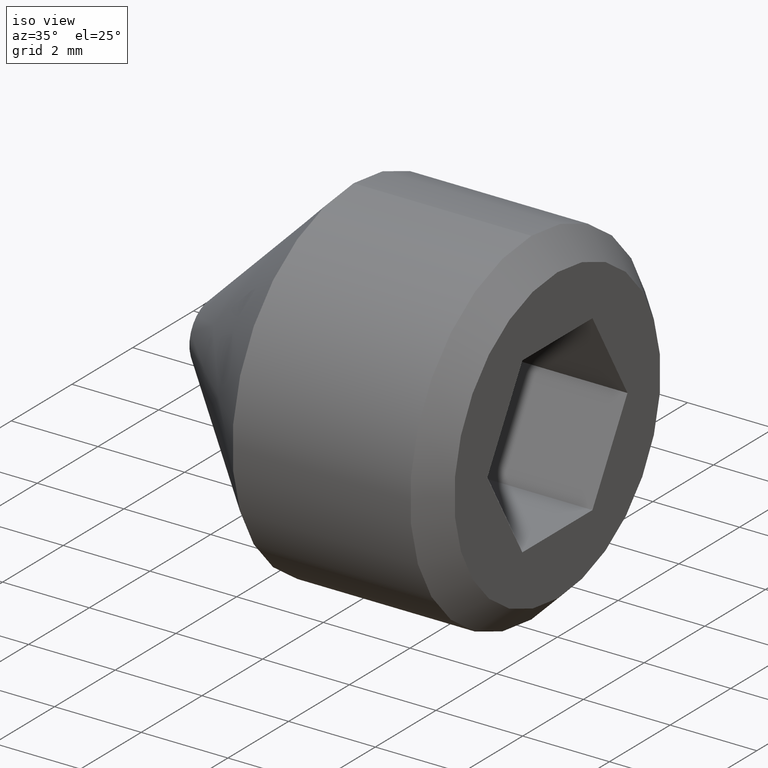
[diagram: clean part render]
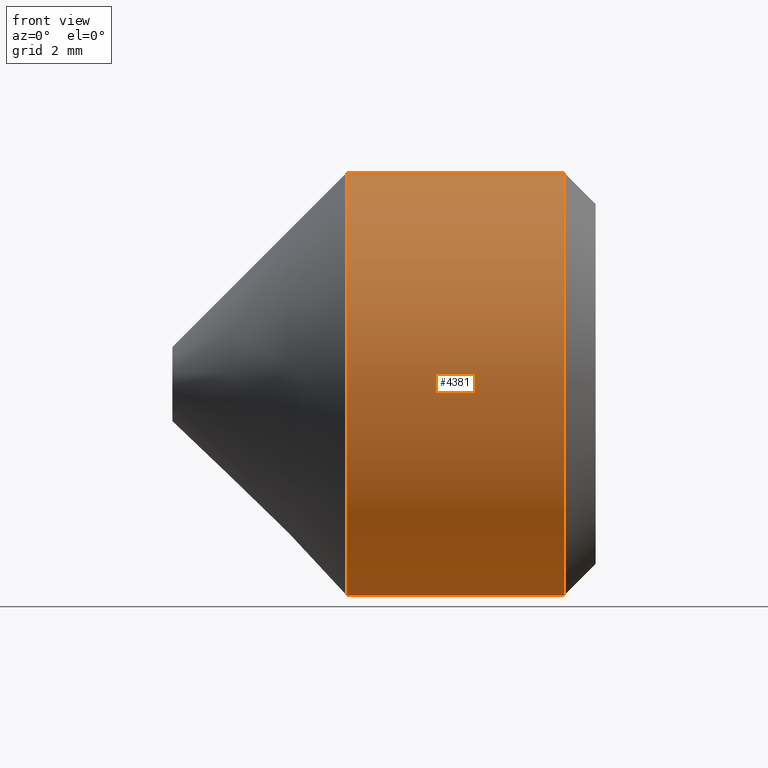
[diagram: tour spotlight — one face highlighted and labeled with its STEP entity id]
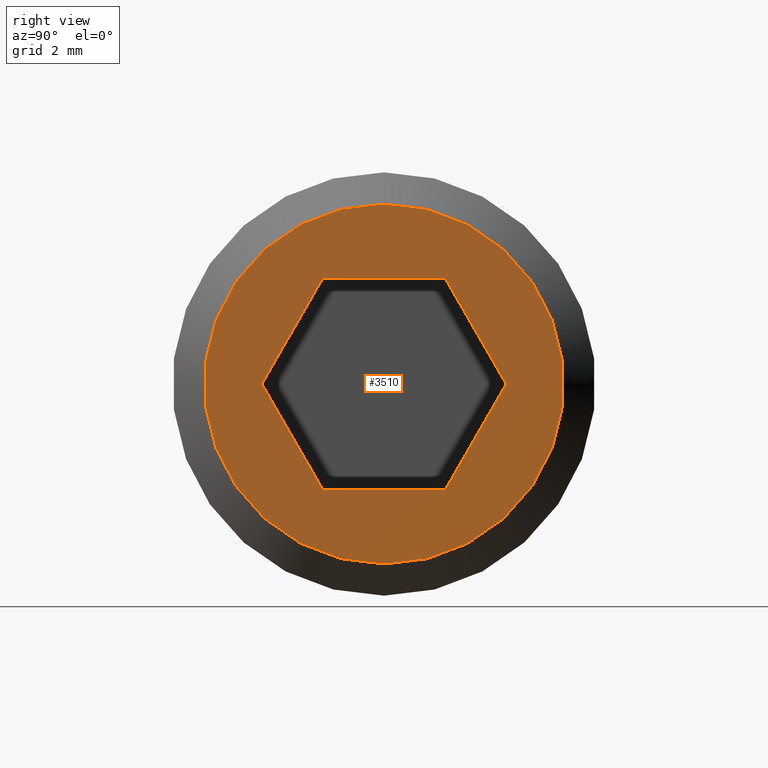
[diagram: tour spotlight — one face highlighted and labeled with its STEP entity id]
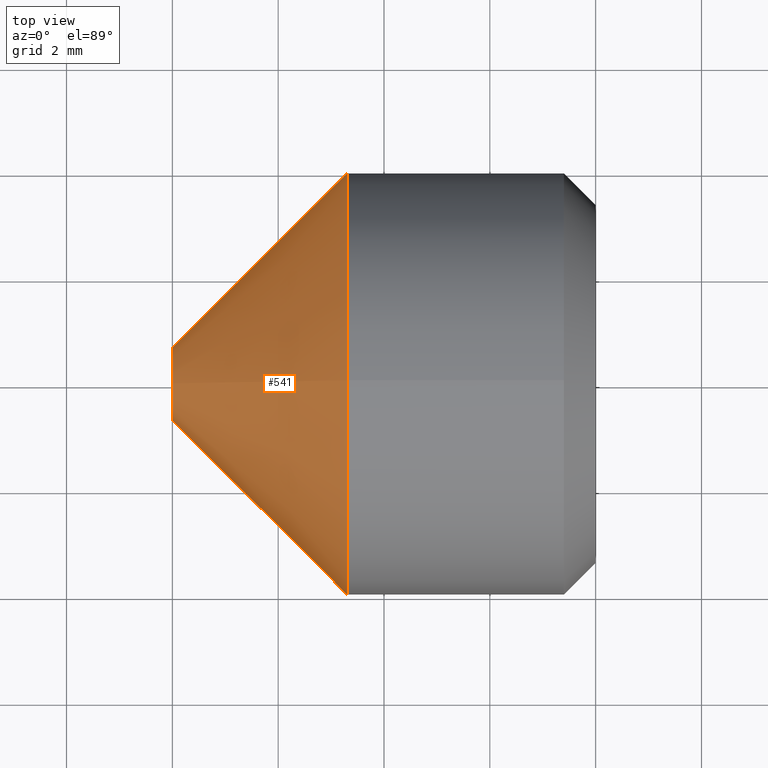
[diagram: tour spotlight — one face highlighted and labeled with its STEP entity id]
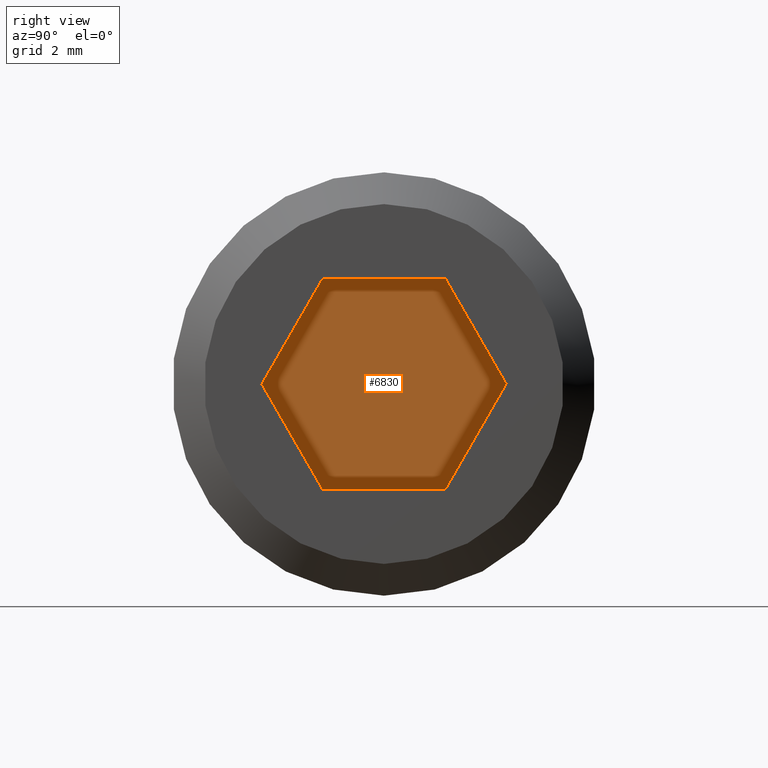
[diagram: tour spotlight — one face highlighted and labeled with its STEP entity id]
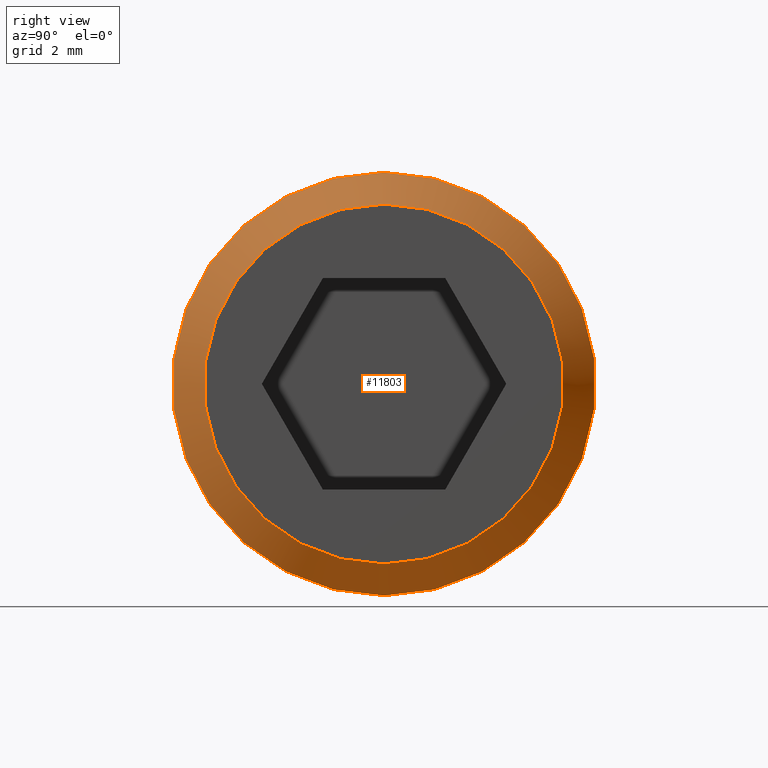
[diagram: tour spotlight — one face highlighted and labeled with its STEP entity id]
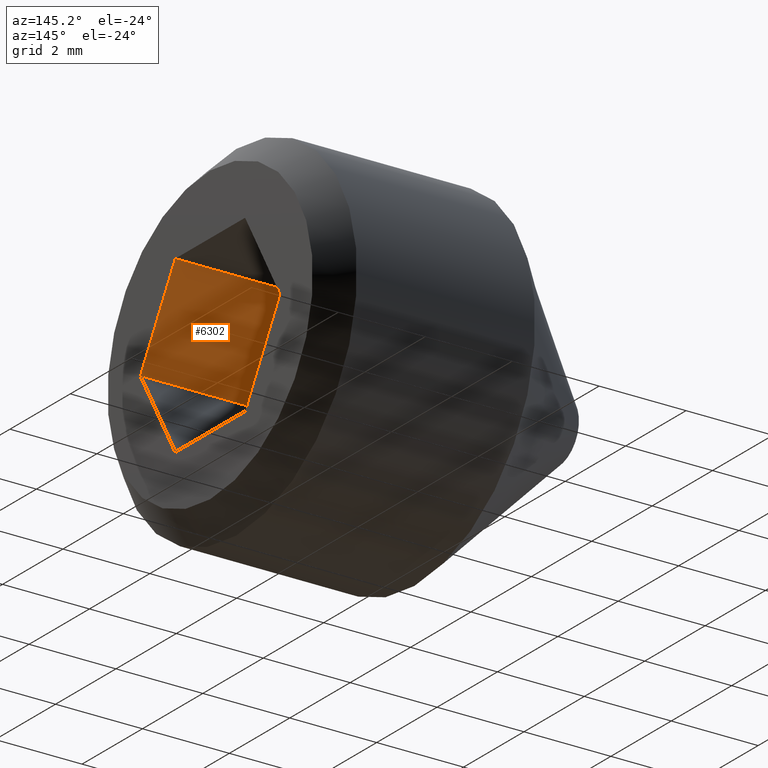
[diagram: tour spotlight — one face highlighted and labeled with its STEP entity id]
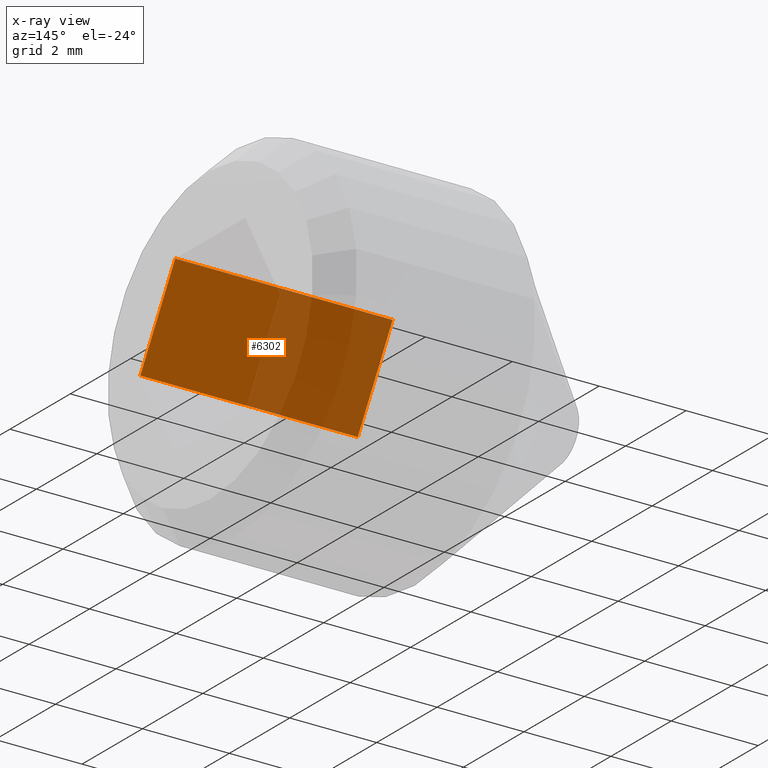
[diagram: x-ray of the same camera — body ghosted, this tour face saturated]
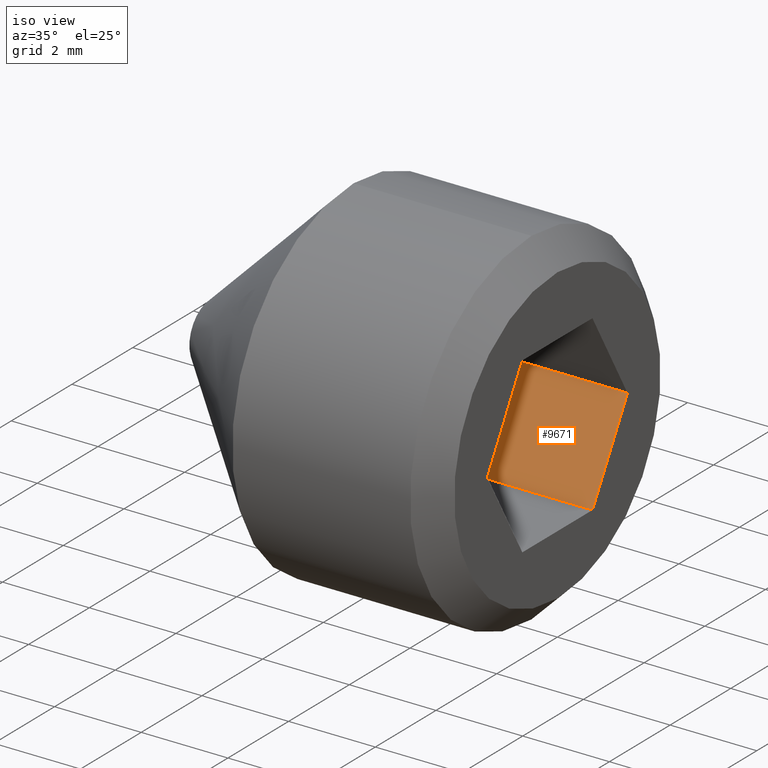
[diagram: tour spotlight — one face highlighted and labeled with its STEP entity id]
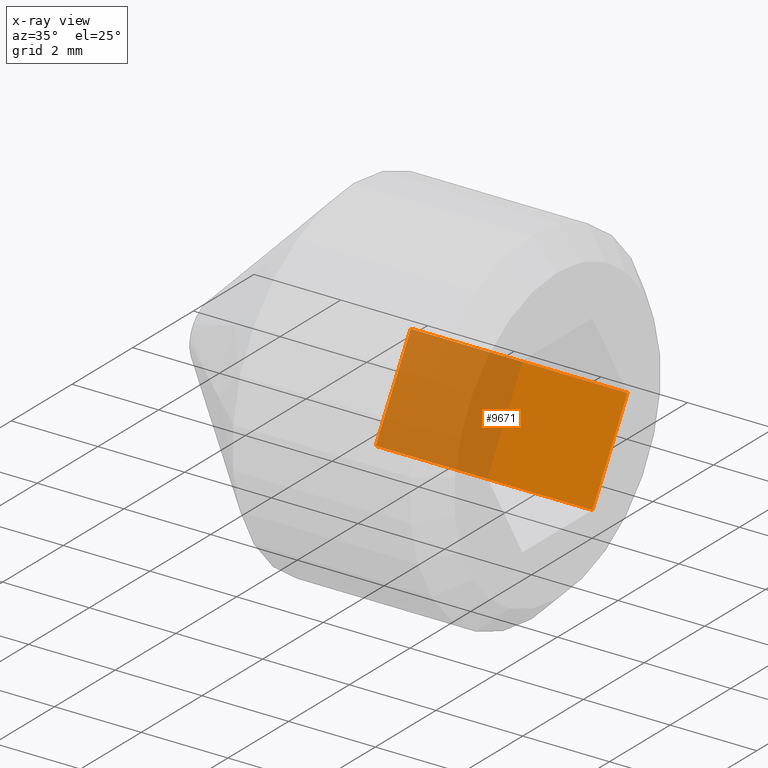
[diagram: x-ray of the same camera — body ghosted, this tour face saturated]
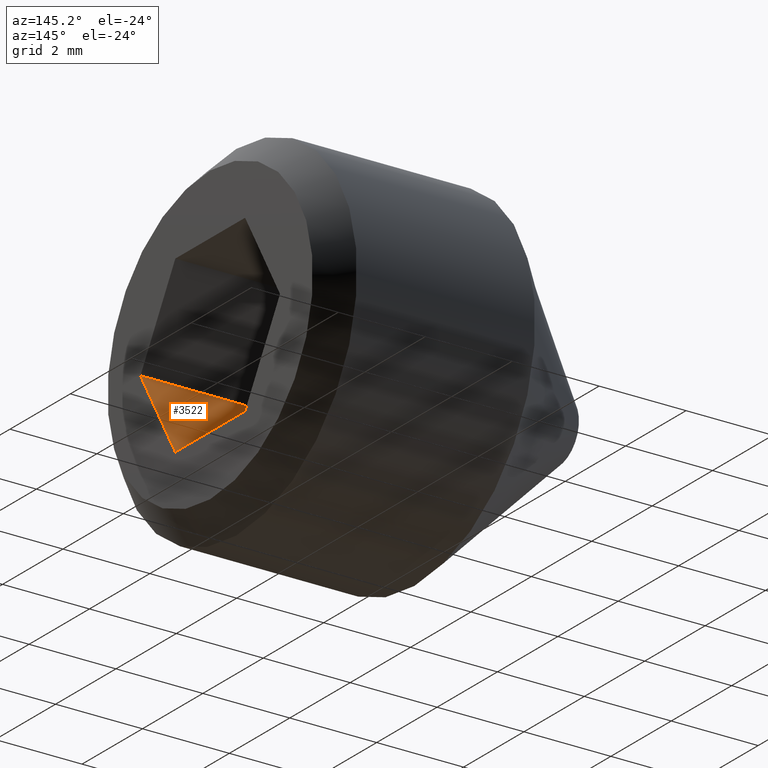
[diagram: tour spotlight — one face highlighted and labeled with its STEP entity id]
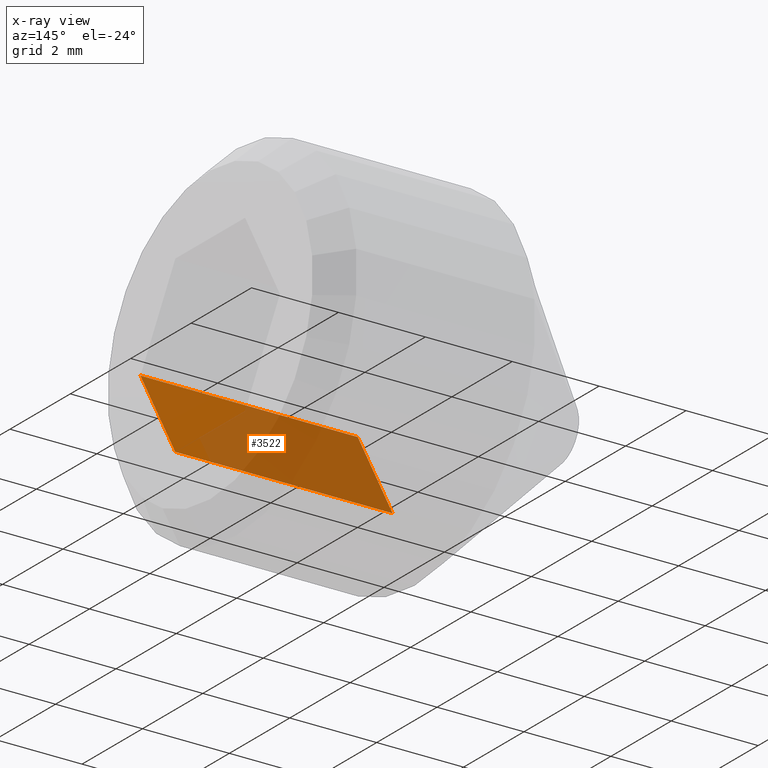
[diagram: x-ray of the same camera — body ghosted, this tour face saturated]
A machine part: a face-by-face anatomy tour. The part has 168 B-rep faces; the first image is the clean iso view, then the 8 largest visible faces are spotlighted one at a time (largest first), each with its STEP entity span.

Face 1 — front view, entity #4381. In plain terms, the highlighted cylindrical surface (bore or boss wall) has radius 4 mm, axis along (-1, -0, -0).
Definition (entity closure, byte-faithful):
#390 = VERTEX_POINT ( 'NONE', #3064 ) ;
#786 = CIRCLE ( 'NONE', #8305, 4.000000000000000000 ) ;
#1493 = DIRECTION ( 'NONE',  ( -1.000000000000000000, -0.0000000000000000000, -0.0000000000000000000 ) ) ;
#1528 = CARTESIAN_POINT ( 'NONE',  ( 3.299999999999964700, 0.0000000000000000000, 0.0000000000000000000 ) ) ;
#3064 = CARTESIAN_POINT ( 'NONE',  ( 3.299999999999964700, 0.0000000000000000000, 4.000000000000000000 ) ) ;
#4381 = ADVANCED_FACE ( 'NONE', ( #11003, #4550 ), #5138, .T. ) ;
#4550 = FACE_OUTER_BOUND ( 'NONE', #10054, .T. ) ;
#4663 = EDGE_CURVE ( 'NONE', #390, #390, #786, .T. ) ;
#5138 = CYLINDRICAL_SURFACE ( 'NONE', #9215, 4.000000000000000000 ) ;
#6056 = ORIENTED_EDGE ( 'NONE', *, *, #6669, .T. ) ;
#6124 = CARTESIAN_POINT ( 'NONE',  ( 8.000000000000000000, 0.0000000000000000000, 0.0000000000000000000 ) ) ;
#6669 = EDGE_CURVE ( 'NONE', #7599, #7599, #10388, .T. ) ;
#6915 = AXIS2_PLACEMENT_3D ( 'NONE', #11147, #9399, #8392 ) ;
#7024 = DIRECTION ( 'NONE',  ( -1.000000000000000000, -0.0000000000000000000, -0.0000000000000000000 ) ) ;
#7065 = DIRECTION ( 'NONE',  ( 0.0000000000000000000, 0.0000000000000000000, 1.000000000000000000 ) ) ;
#7494 = EDGE_LOOP ( 'NONE', ( #6056 ) ) ;
#7599 = VERTEX_POINT ( 'NONE', #7992 ) ;
#7992 = CARTESIAN_POINT ( 'NONE',  ( 7.399999999999998600, 0.0000000000000000000, -4.000000000000000000 ) ) ;
#8305 = AXIS2_PLACEMENT_3D ( 'NONE', #1528, #1493, #9620 ) ;
#8392 = DIRECTION ( 'NONE',  ( 0.0000000000000000000, 0.0000000000000000000, -1.000000000000000000 ) ) ;
#9215 = AXIS2_PLACEMENT_3D ( 'NONE', #6124, #7024, #7065 ) ;
#9399 = DIRECTION ( 'NONE',  ( -1.000000000000000000, 0.0000000000000000000, 0.0000000000000000000 ) ) ;
#9620 = DIRECTION ( 'NONE',  ( 0.0000000000000000000, 0.0000000000000000000, 1.000000000000000000 ) ) ;
#10054 = EDGE_LOOP ( 'NONE', ( #11303 ) ) ;
#10388 = CIRCLE ( 'NONE', #6915, 4.000000000000000000 ) ;
#11003 = FACE_OUTER_BOUND ( 'NONE', #7494, .T. ) ;
#11147 = CARTESIAN_POINT ( 'NONE',  ( 7.399999999999998600, 0.0000000000000000000, 0.0000000000000000000 ) ) ;
#11303 = ORIENTED_EDGE ( 'NONE', *, *, #4663, .F. ) ;

Face 2 — right view, entity #3510. In plain terms, the highlighted planar face has unit normal (1, 0, 0).
Definition (entity closure, byte-faithful):
#27 = DIRECTION ( 'NONE',  ( 1.000000000000000000, 0.0000000000000000000, 0.0000000000000000000 ) ) ;
#343 = VERTEX_POINT ( 'NONE', #1498 ) ;
#411 = EDGE_CURVE ( 'NONE', #6278, #343, #10595, .T. ) ;
#626 = EDGE_CURVE ( 'NONE', #2714, #6278, #8764, .T. ) ;
#948 = CARTESIAN_POINT ( 'NONE',  ( 8.000000000000000000, 0.0000000000000000000, 0.0000000000000000000 ) ) ;
#950 = LINE ( 'NONE', #1221, #10441 ) ;
#1024 = VECTOR ( 'NONE', #9881, 1000.000000000000000 ) ;
#1061 = DIRECTION ( 'NONE',  ( 1.000000000000000000, 0.0000000000000000000, 0.0000000000000000000 ) ) ;
#1197 = AXIS2_PLACEMENT_3D ( 'NONE', #948, #27, #9168 ) ;
#1221 = CARTESIAN_POINT ( 'NONE',  ( 8.000000000000000000, 2.309401076758503400, -8.844675031407550400E-016 ) ) ;
#1498 = CARTESIAN_POINT ( 'NONE',  ( 8.000000000000000000, -2.309401076758502900, 2.168404344971008900E-016 ) ) ;
#1565 = VERTEX_POINT ( 'NONE', #5820 ) ;
#1920 = PLANE ( 'NONE',  #1197 ) ;
#1946 = CARTESIAN_POINT ( 'NONE',  ( 8.000000000000000000, 0.0000000000000000000, 0.0000000000000000000 ) ) ;
#2029 = CARTESIAN_POINT ( 'NONE',  ( 8.000000000000000000, 2.309401076758503400, -8.844675031407550400E-016 ) ) ;
#2254 = LINE ( 'NONE', #5910, #3553 ) ;
#2714 = VERTEX_POINT ( 'NONE', #8653 ) ;
#3028 = EDGE_CURVE ( 'NONE', #3137, #2714, #950, .T. ) ;
#3114 = CARTESIAN_POINT ( 'NONE',  ( 8.000000000000000000, 1.154700538379252400, -1.999999999999999600 ) ) ;
#3137 = VERTEX_POINT ( 'NONE', #2029 ) ;
#3202 = EDGE_CURVE ( 'NONE', #9462, #4378, #2254, .T. ) ;
#3441 = CARTESIAN_POINT ( 'NONE',  ( 8.000000000000000000, 1.154700538379252400, -1.999999999999999600 ) ) ;
#3486 = CARTESIAN_POINT ( 'NONE',  ( 8.000000000000000000, -1.154700538379251000, 2.000000000000000000 ) ) ;
#3492 = CIRCLE ( 'NONE', #10682, 3.400000000000000800 ) ;
#3510 = ADVANCED_FACE ( 'NONE', ( #11152, #3832 ), #1920, .T. ) ;
#3539 = EDGE_LOOP ( 'NONE', ( #4271 ) ) ;
#3553 = VECTOR ( 'NONE', #11502, 1000.000000000000000 ) ;
#3832 = FACE_OUTER_BOUND ( 'NONE', #3539, .T. ) ;
#4271 = ORIENTED_EDGE ( 'NONE', *, *, #8245, .T. ) ;
#4378 = VERTEX_POINT ( 'NONE', #3441 ) ;
#4903 = DIRECTION ( 'NONE',  ( 0.0000000000000000000, 0.4999999999999999400, 0.8660254037844386000 ) ) ;
#5820 = CARTESIAN_POINT ( 'NONE',  ( 8.000000000000000000, 0.0000000000000000000, -3.400000000000000800 ) ) ;
#5910 = CARTESIAN_POINT ( 'NONE',  ( 8.000000000000000000, -1.154700538379252400, -1.999999999999999600 ) ) ;
#6002 = CARTESIAN_POINT ( 'NONE',  ( 8.000000000000000000, -2.309401076758502500, 4.317532481129756600E-016 ) ) ;
#6278 = VERTEX_POINT ( 'NONE', #3486 ) ;
#6321 = VECTOR ( 'NONE', #6759, 1000.000000000000000 ) ;
#6344 = CARTESIAN_POINT ( 'NONE',  ( 8.000000000000000000, -1.154700538379252400, -1.999999999999999600 ) ) ;
#6605 = VECTOR ( 'NONE', #11417, 1000.000000000000100 ) ;
#6633 = ORIENTED_EDGE ( 'NONE', *, *, #8403, .F. ) ;
#6659 = DIRECTION ( 'NONE',  ( 0.0000000000000000000, 0.0000000000000000000, -1.000000000000000000 ) ) ;
#6759 = DIRECTION ( 'NONE',  ( 0.0000000000000000000, -1.000000000000000000, 0.0000000000000000000 ) ) ;
#6932 = CARTESIAN_POINT ( 'NONE',  ( 8.000000000000000000, -1.154700538379251000, 2.000000000000000000 ) ) ;
#7305 = ORIENTED_EDGE ( 'NONE', *, *, #3028, .F. ) ;
#8136 = EDGE_CURVE ( 'NONE', #343, #9462, #9956, .T. ) ;
#8137 = ORIENTED_EDGE ( 'NONE', *, *, #8136, .F. ) ;
#8245 = EDGE_CURVE ( 'NONE', #1565, #1565, #3492, .T. ) ;
#8403 = EDGE_CURVE ( 'NONE', #4378, #3137, #10226, .T. ) ;
#8546 = DIRECTION ( 'NONE',  ( 0.0000000000000000000, -0.4999999999999997200, 0.8660254037844388200 ) ) ;
#8653 = CARTESIAN_POINT ( 'NONE',  ( 8.000000000000000000, 1.154700538379252100, 2.000000000000000000 ) ) ;
#8764 = LINE ( 'NONE', #11400, #6321 ) ;
#8973 = ORIENTED_EDGE ( 'NONE', *, *, #3202, .F. ) ;
#9168 = DIRECTION ( 'NONE',  ( 0.0000000000000000000, 0.0000000000000000000, -1.000000000000000000 ) ) ;
#9462 = VERTEX_POINT ( 'NONE', #6344 ) ;
#9765 = EDGE_LOOP ( 'NONE', ( #11397, #11482, #7305, #6633, #8973, #8137 ) ) ;
#9881 = DIRECTION ( 'NONE',  ( 0.0000000000000000000, 0.4999999999999995600, -0.8660254037844389300 ) ) ;
#9956 = LINE ( 'NONE', #6002, #1024 ) ;
#10226 = LINE ( 'NONE', #3114, #10368 ) ;
#10368 = VECTOR ( 'NONE', #4903, 1000.000000000000100 ) ;
#10441 = VECTOR ( 'NONE', #8546, 1000.000000000000000 ) ;
#10595 = LINE ( 'NONE', #6932, #6605 ) ;
#10682 = AXIS2_PLACEMENT_3D ( 'NONE', #1946, #1061, #6659 ) ;
#11152 = FACE_BOUND ( 'NONE', #9765, .T. ) ;
#11397 = ORIENTED_EDGE ( 'NONE', *, *, #411, .F. ) ;
#11400 = CARTESIAN_POINT ( 'NONE',  ( 8.000000000000000000, 1.154700538379252100, 2.000000000000000000 ) ) ;
#11417 = DIRECTION ( 'NONE',  ( 0.0000000000000000000, -0.4999999999999999400, -0.8660254037844386000 ) ) ;
#11482 = ORIENTED_EDGE ( 'NONE', *, *, #626, .F. ) ;
#11502 = DIRECTION ( 'NONE',  ( 0.0000000000000000000, 1.000000000000000000, 0.0000000000000000000 ) ) ;

Face 3 — top view, entity #541. In plain terms, the highlighted conical surface has half-angle 45 deg.
Definition (entity closure, byte-faithful):
#199 = ORIENTED_EDGE ( 'NONE', *, *, #4663, .T. ) ;
#390 = VERTEX_POINT ( 'NONE', #3064 ) ;
#541 = ADVANCED_FACE ( 'NONE', ( #11178, #3842 ), #5173, .T. ) ;
#637 = DIRECTION ( 'NONE',  ( 0.0000000000000000000, 0.0000000000000000000, -1.000000000000000000 ) ) ;
#786 = CIRCLE ( 'NONE', #8305, 4.000000000000000000 ) ;
#1493 = DIRECTION ( 'NONE',  ( -1.000000000000000000, -0.0000000000000000000, -0.0000000000000000000 ) ) ;
#1528 = CARTESIAN_POINT ( 'NONE',  ( 3.299999999999964700, 0.0000000000000000000, 0.0000000000000000000 ) ) ;
#1709 = VERTEX_POINT ( 'NONE', #4769 ) ;
#2110 = AXIS2_PLACEMENT_3D ( 'NONE', #8906, #4324, #637 ) ;
#3064 = CARTESIAN_POINT ( 'NONE',  ( 3.299999999999964700, 0.0000000000000000000, 4.000000000000000000 ) ) ;
#3363 = EDGE_LOOP ( 'NONE', ( #7447 ) ) ;
#3842 = FACE_BOUND ( 'NONE', #3363, .T. ) ;
#4151 = AXIS2_PLACEMENT_3D ( 'NONE', #10236, #4754, #5674 ) ;
#4324 = DIRECTION ( 'NONE',  ( 1.000000000000000000, 0.0000000000000000000, 0.0000000000000000000 ) ) ;
#4634 = EDGE_LOOP ( 'NONE', ( #199 ) ) ;
#4663 = EDGE_CURVE ( 'NONE', #390, #390, #786, .T. ) ;
#4754 = DIRECTION ( 'NONE',  ( -1.000000000000000000, -0.0000000000000000000, -0.0000000000000000000 ) ) ;
#4769 = CARTESIAN_POINT ( 'NONE',  ( 2.816687638038912500E-016, 0.0000000000000000000, 0.6999999999999999600 ) ) ;
#5173 = CONICAL_SURFACE ( 'NONE', #2110, 0.6999999999999999600, 0.7853981633974537200 ) ;
#5674 = DIRECTION ( 'NONE',  ( 0.0000000000000000000, 0.0000000000000000000, 1.000000000000000000 ) ) ;
#7447 = ORIENTED_EDGE ( 'NONE', *, *, #7740, .F. ) ;
#7740 = EDGE_CURVE ( 'NONE', #1709, #1709, #11940, .T. ) ;
#8305 = AXIS2_PLACEMENT_3D ( 'NONE', #1528, #1493, #9620 ) ;
#8906 = CARTESIAN_POINT ( 'NONE',  ( 2.816687638038912500E-016, 0.0000000000000000000, 0.0000000000000000000 ) ) ;
#9620 = DIRECTION ( 'NONE',  ( 0.0000000000000000000, 0.0000000000000000000, 1.000000000000000000 ) ) ;
#10236 = CARTESIAN_POINT ( 'NONE',  ( 2.816687638038912500E-016, 0.0000000000000000000, 0.0000000000000000000 ) ) ;
#11178 = FACE_OUTER_BOUND ( 'NONE', #4634, .T. ) ;
#11940 = CIRCLE ( 'NONE', #4151, 0.6999999999999999600 ) ;

Face 4 — right view, entity #6830. In plain terms, the highlighted planar face has unit normal (1, -0, 0).
Definition (entity closure, byte-faithful):
#424 = AXIS2_PLACEMENT_3D ( 'NONE', #6006, #9524, #4183 ) ;
#905 = ORIENTED_EDGE ( 'NONE', *, *, #10077, .T. ) ;
#1026 = ORIENTED_EDGE ( 'NONE', *, *, #2127, .T. ) ;
#1112 = LINE ( 'NONE', #7475, #2111 ) ;
#1336 = VECTOR ( 'NONE', #4856, 1000.000000000000100 ) ;
#1814 = VERTEX_POINT ( 'NONE', #2299 ) ;
#1966 = EDGE_CURVE ( 'NONE', #5034, #4649, #4302, .T. ) ;
#2111 = VECTOR ( 'NONE', #7509, 1000.000000000000100 ) ;
#2127 = EDGE_CURVE ( 'NONE', #1814, #5034, #1112, .T. ) ;
#2299 = CARTESIAN_POINT ( 'NONE',  ( 3.000000000000000000, -1.154700538379251000, 1.999999999999999600 ) ) ;
#2416 = EDGE_LOOP ( 'NONE', ( #1026, #7368, #5772, #9176, #905, #8730 ) ) ;
#3193 = CARTESIAN_POINT ( 'NONE',  ( 3.000000000000000000, 2.309401076758503400, -1.190619091596349400E-015 ) ) ;
#3358 = CARTESIAN_POINT ( 'NONE',  ( 3.000000000000000000, 1.154700538379252100, 1.999999999999999600 ) ) ;
#3407 = EDGE_CURVE ( 'NONE', #9070, #1814, #8165, .T. ) ;
#3988 = CARTESIAN_POINT ( 'NONE',  ( 3.000000000000000000, -1.154700538379252400, -2.000000000000000000 ) ) ;
#4143 = VECTOR ( 'NONE', #7248, 1000.000000000000000 ) ;
#4183 = DIRECTION ( 'NONE',  ( 0.0000000000000000000, 0.0000000000000000000, -1.000000000000000000 ) ) ;
#4302 = LINE ( 'NONE', #7209, #4143 ) ;
#4360 = DIRECTION ( 'NONE',  ( 0.0000000000000000000, -1.000000000000000000, 0.0000000000000000000 ) ) ;
#4649 = VERTEX_POINT ( 'NONE', #3988 ) ;
#4821 = CARTESIAN_POINT ( 'NONE',  ( 3.000000000000000000, 2.309401076758503400, -1.190619091596349400E-015 ) ) ;
#4856 = DIRECTION ( 'NONE',  ( 0.0000000000000000000, 0.4999999999999999400, 0.8660254037844386000 ) ) ;
#5034 = VERTEX_POINT ( 'NONE', #5447 ) ;
#5041 = CARTESIAN_POINT ( 'NONE',  ( 3.000000000000000000, -1.154700538379252400, -2.000000000000000000 ) ) ;
#5341 = LINE ( 'NONE', #4821, #10067 ) ;
#5447 = CARTESIAN_POINT ( 'NONE',  ( 3.000000000000000000, -2.309401076758502500, 1.256016596573813500E-016 ) ) ;
#5772 = ORIENTED_EDGE ( 'NONE', *, *, #6879, .T. ) ;
#5873 = EDGE_CURVE ( 'NONE', #11632, #7323, #9834, .T. ) ;
#6006 = CARTESIAN_POINT ( 'NONE',  ( 3.000000000000000000, -3.464101615137753900, -2.000000000000000000 ) ) ;
#6382 = CARTESIAN_POINT ( 'NONE',  ( 3.000000000000000000, 1.154700538379252400, -2.000000000000000000 ) ) ;
#6830 = ADVANCED_FACE ( 'NONE', ( #8520 ), #10549, .T. ) ;
#6879 = EDGE_CURVE ( 'NONE', #4649, #11632, #8249, .T. ) ;
#7209 = CARTESIAN_POINT ( 'NONE',  ( 3.000000000000000000, -2.309401076758502500, 1.256016596573813500E-016 ) ) ;
#7248 = DIRECTION ( 'NONE',  ( 0.0000000000000000000, 0.4999999999999995600, -0.8660254037844389300 ) ) ;
#7323 = VERTEX_POINT ( 'NONE', #3193 ) ;
#7368 = ORIENTED_EDGE ( 'NONE', *, *, #1966, .T. ) ;
#7475 = CARTESIAN_POINT ( 'NONE',  ( 3.000000000000000000, -1.154700538379251000, 1.999999999999999600 ) ) ;
#7509 = DIRECTION ( 'NONE',  ( 0.0000000000000000000, -0.4999999999999999400, -0.8660254037844386000 ) ) ;
#8095 = CARTESIAN_POINT ( 'NONE',  ( 3.000000000000000000, 1.154700538379252100, 1.999999999999999600 ) ) ;
#8165 = LINE ( 'NONE', #8095, #8881 ) ;
#8249 = LINE ( 'NONE', #5041, #10098 ) ;
#8520 = FACE_OUTER_BOUND ( 'NONE', #2416, .T. ) ;
#8730 = ORIENTED_EDGE ( 'NONE', *, *, #3407, .T. ) ;
#8881 = VECTOR ( 'NONE', #4360, 1000.000000000000000 ) ;
#9070 = VERTEX_POINT ( 'NONE', #3358 ) ;
#9176 = ORIENTED_EDGE ( 'NONE', *, *, #5873, .T. ) ;
#9524 = DIRECTION ( 'NONE',  ( 1.000000000000000000, -0.0000000000000000000, 0.0000000000000000000 ) ) ;
#9834 = LINE ( 'NONE', #10337, #1336 ) ;
#10067 = VECTOR ( 'NONE', #11184, 1000.000000000000000 ) ;
#10077 = EDGE_CURVE ( 'NONE', #7323, #9070, #5341, .T. ) ;
#10098 = VECTOR ( 'NONE', #10589, 1000.000000000000000 ) ;
#10337 = CARTESIAN_POINT ( 'NONE',  ( 3.000000000000000000, 1.154700538379252400, -2.000000000000000000 ) ) ;
#10549 = PLANE ( 'NONE',  #424 ) ;
#10589 = DIRECTION ( 'NONE',  ( 0.0000000000000000000, 1.000000000000000000, 0.0000000000000000000 ) ) ;
#11184 = DIRECTION ( 'NONE',  ( 0.0000000000000000000, -0.4999999999999997200, 0.8660254037844388200 ) ) ;
#11632 = VERTEX_POINT ( 'NONE', #6382 ) ;

Face 5 — right view, entity #11803. In plain terms, the highlighted conical surface has half-angle 45 deg.
Definition (entity closure, byte-faithful):
#1061 = DIRECTION ( 'NONE',  ( 1.000000000000000000, 0.0000000000000000000, 0.0000000000000000000 ) ) ;
#1565 = VERTEX_POINT ( 'NONE', #5820 ) ;
#1946 = CARTESIAN_POINT ( 'NONE',  ( 8.000000000000000000, 0.0000000000000000000, 0.0000000000000000000 ) ) ;
#2116 = ORIENTED_EDGE ( 'NONE', *, *, #8245, .F. ) ;
#2195 = DIRECTION ( 'NONE',  ( 0.0000000000000000000, 0.0000000000000000000, 1.000000000000000000 ) ) ;
#3492 = CIRCLE ( 'NONE', #10682, 3.400000000000000800 ) ;
#3726 = FACE_OUTER_BOUND ( 'NONE', #9941, .T. ) ;
#5337 = ORIENTED_EDGE ( 'NONE', *, *, #6669, .F. ) ;
#5671 = EDGE_LOOP ( 'NONE', ( #2116 ) ) ;
#5820 = CARTESIAN_POINT ( 'NONE',  ( 8.000000000000000000, 0.0000000000000000000, -3.400000000000000800 ) ) ;
#6659 = DIRECTION ( 'NONE',  ( 0.0000000000000000000, 0.0000000000000000000, -1.000000000000000000 ) ) ;
#6669 = EDGE_CURVE ( 'NONE', #7599, #7599, #10388, .T. ) ;
#6915 = AXIS2_PLACEMENT_3D ( 'NONE', #11147, #9399, #8392 ) ;
#7599 = VERTEX_POINT ( 'NONE', #7992 ) ;
#7873 = DIRECTION ( 'NONE',  ( -1.000000000000000000, 0.0000000000000000000, 0.0000000000000000000 ) ) ;
#7992 = CARTESIAN_POINT ( 'NONE',  ( 7.399999999999998600, 0.0000000000000000000, -4.000000000000000000 ) ) ;
#8172 = AXIS2_PLACEMENT_3D ( 'NONE', #8759, #7873, #2195 ) ;
#8245 = EDGE_CURVE ( 'NONE', #1565, #1565, #3492, .T. ) ;
#8392 = DIRECTION ( 'NONE',  ( 0.0000000000000000000, 0.0000000000000000000, -1.000000000000000000 ) ) ;
#8759 = CARTESIAN_POINT ( 'NONE',  ( 8.000000000000000000, 0.0000000000000000000, 0.0000000000000000000 ) ) ;
#9399 = DIRECTION ( 'NONE',  ( -1.000000000000000000, 0.0000000000000000000, 0.0000000000000000000 ) ) ;
#9941 = EDGE_LOOP ( 'NONE', ( #5337 ) ) ;
#10388 = CIRCLE ( 'NONE', #6915, 4.000000000000000000 ) ;
#10613 = CONICAL_SURFACE ( 'NONE', #8172, 3.400000000000000800, 0.7853981633974465000 ) ;
#10682 = AXIS2_PLACEMENT_3D ( 'NONE', #1946, #1061, #6659 ) ;
#11147 = CARTESIAN_POINT ( 'NONE',  ( 7.399999999999998600, 0.0000000000000000000, 0.0000000000000000000 ) ) ;
#11183 = FACE_BOUND ( 'NONE', #5671, .T. ) ;
#11803 = ADVANCED_FACE ( 'NONE', ( #3726, #11183 ), #10613, .T. ) ;

Face 6 — auxiliary view, entity #6302. An x-ray twin of the same camera follows (body ghosted, this face saturated) — the face is partly hidden behind the body. In plain terms, the highlighted planar face has unit normal (-0, -0.866, 0.5).
Definition (entity closure, byte-faithful):
#70 = ORIENTED_EDGE ( 'NONE', *, *, #2735, .F. ) ;
#107 = CARTESIAN_POINT ( 'NONE',  ( 3.000000000000000000, -1.154700538379251000, 1.999999999999999600 ) ) ;
#343 = VERTEX_POINT ( 'NONE', #1498 ) ;
#411 = EDGE_CURVE ( 'NONE', #6278, #343, #10595, .T. ) ;
#918 = VECTOR ( 'NONE', #4787, 1000.000000000000000 ) ;
#1112 = LINE ( 'NONE', #7475, #2111 ) ;
#1498 = CARTESIAN_POINT ( 'NONE',  ( 8.000000000000000000, -2.309401076758502900, 2.168404344971008900E-016 ) ) ;
#1814 = VERTEX_POINT ( 'NONE', #2299 ) ;
#2111 = VECTOR ( 'NONE', #7509, 1000.000000000000100 ) ;
#2120 = ORIENTED_EDGE ( 'NONE', *, *, #5144, .T. ) ;
#2127 = EDGE_CURVE ( 'NONE', #1814, #5034, #1112, .T. ) ;
#2299 = CARTESIAN_POINT ( 'NONE',  ( 3.000000000000000000, -1.154700538379251000, 1.999999999999999600 ) ) ;
#2656 = LINE ( 'NONE', #107, #918 ) ;
#2664 = ORIENTED_EDGE ( 'NONE', *, *, #2127, .F. ) ;
#2726 = DIRECTION ( 'NONE',  ( 1.000000000000000000, -0.0000000000000000000, 6.123031769111886300E-017 ) ) ;
#2735 = EDGE_CURVE ( 'NONE', #5034, #343, #11309, .T. ) ;
#3486 = CARTESIAN_POINT ( 'NONE',  ( 8.000000000000000000, -1.154700538379251000, 2.000000000000000000 ) ) ;
#4228 = AXIS2_PLACEMENT_3D ( 'NONE', #5508, #7348, #10168 ) ;
#4787 = DIRECTION ( 'NONE',  ( 1.000000000000000000, -0.0000000000000000000, 6.123031769111886300E-017 ) ) ;
#5034 = VERTEX_POINT ( 'NONE', #5447 ) ;
#5144 = EDGE_CURVE ( 'NONE', #1814, #6278, #2656, .T. ) ;
#5447 = CARTESIAN_POINT ( 'NONE',  ( 3.000000000000000000, -2.309401076758502500, 1.256016596573813500E-016 ) ) ;
#5508 = CARTESIAN_POINT ( 'NONE',  ( 3.000000000000000000, -1.154700538379251000, 1.999999999999999600 ) ) ;
#6278 = VERTEX_POINT ( 'NONE', #3486 ) ;
#6302 = ADVANCED_FACE ( 'NONE', ( #10526 ), #8302, .F. ) ;
#6605 = VECTOR ( 'NONE', #11417, 1000.000000000000100 ) ;
#6932 = CARTESIAN_POINT ( 'NONE',  ( 8.000000000000000000, -1.154700538379251000, 2.000000000000000000 ) ) ;
#7285 = CARTESIAN_POINT ( 'NONE',  ( 3.000000000000000000, -2.309401076758502500, 1.256016596573813500E-016 ) ) ;
#7348 = DIRECTION ( 'NONE',  ( -3.061515884555943800E-017, -0.8660254037844387100, 0.5000000000000001100 ) ) ;
#7468 = EDGE_LOOP ( 'NONE', ( #9902, #70, #2664, #2120 ) ) ;
#7475 = CARTESIAN_POINT ( 'NONE',  ( 3.000000000000000000, -1.154700538379251000, 1.999999999999999600 ) ) ;
#7509 = DIRECTION ( 'NONE',  ( 0.0000000000000000000, -0.4999999999999999400, -0.8660254037844386000 ) ) ;
#8302 = PLANE ( 'NONE',  #4228 ) ;
#9902 = ORIENTED_EDGE ( 'NONE', *, *, #411, .T. ) ;
#10031 = VECTOR ( 'NONE', #2726, 1000.000000000000000 ) ;
#10168 = DIRECTION ( 'NONE',  ( 0.0000000000000000000, -0.5000000000000000000, -0.8660254037844386000 ) ) ;
#10526 = FACE_OUTER_BOUND ( 'NONE', #7468, .T. ) ;
#10595 = LINE ( 'NONE', #6932, #6605 ) ;
#11309 = LINE ( 'NONE', #7285, #10031 ) ;
#11417 = DIRECTION ( 'NONE',  ( 0.0000000000000000000, -0.4999999999999999400, -0.8660254037844386000 ) ) ;

Face 7 — iso view, entity #9671. An x-ray twin of the same camera follows (body ghosted, this face saturated) — the face is partly hidden behind the body. In plain terms, the highlighted planar face has unit normal (0, 0.866, -0.5).
Definition (entity closure, byte-faithful):
#1336 = VECTOR ( 'NONE', #4856, 1000.000000000000100 ) ;
#1376 = CARTESIAN_POINT ( 'NONE',  ( 3.000000000000000000, 2.309401076758503400, -1.190619091596349400E-015 ) ) ;
#2029 = CARTESIAN_POINT ( 'NONE',  ( 8.000000000000000000, 2.309401076758503400, -8.844675031407550400E-016 ) ) ;
#2375 = LINE ( 'NONE', #10825, #5421 ) ;
#2436 = LINE ( 'NONE', #1376, #11902 ) ;
#2736 = DIRECTION ( 'NONE',  ( 0.0000000000000000000, 0.5000000000000000000, 0.8660254037844386000 ) ) ;
#3114 = CARTESIAN_POINT ( 'NONE',  ( 8.000000000000000000, 1.154700538379252400, -1.999999999999999600 ) ) ;
#3137 = VERTEX_POINT ( 'NONE', #2029 ) ;
#3193 = CARTESIAN_POINT ( 'NONE',  ( 3.000000000000000000, 2.309401076758503400, -1.190619091596349400E-015 ) ) ;
#3441 = CARTESIAN_POINT ( 'NONE',  ( 8.000000000000000000, 1.154700538379252400, -1.999999999999999600 ) ) ;
#3734 = FACE_OUTER_BOUND ( 'NONE', #8322, .T. ) ;
#3756 = AXIS2_PLACEMENT_3D ( 'NONE', #11080, #6488, #2736 ) ;
#4260 = DIRECTION ( 'NONE',  ( 1.000000000000000000, -0.0000000000000000000, 6.123031769111886300E-017 ) ) ;
#4319 = EDGE_CURVE ( 'NONE', #11632, #4378, #2375, .T. ) ;
#4378 = VERTEX_POINT ( 'NONE', #3441 ) ;
#4477 = ORIENTED_EDGE ( 'NONE', *, *, #4319, .T. ) ;
#4856 = DIRECTION ( 'NONE',  ( 0.0000000000000000000, 0.4999999999999999400, 0.8660254037844386000 ) ) ;
#4903 = DIRECTION ( 'NONE',  ( 0.0000000000000000000, 0.4999999999999999400, 0.8660254037844386000 ) ) ;
#5421 = VECTOR ( 'NONE', #4260, 1000.000000000000000 ) ;
#5873 = EDGE_CURVE ( 'NONE', #11632, #7323, #9834, .T. ) ;
#6382 = CARTESIAN_POINT ( 'NONE',  ( 3.000000000000000000, 1.154700538379252400, -2.000000000000000000 ) ) ;
#6488 = DIRECTION ( 'NONE',  ( 3.061515884555943800E-017, 0.8660254037844387100, -0.5000000000000001100 ) ) ;
#7323 = VERTEX_POINT ( 'NONE', #3193 ) ;
#7902 = ORIENTED_EDGE ( 'NONE', *, *, #11334, .F. ) ;
#8077 = ORIENTED_EDGE ( 'NONE', *, *, #8403, .T. ) ;
#8290 = PLANE ( 'NONE',  #3756 ) ;
#8322 = EDGE_LOOP ( 'NONE', ( #8077, #7902, #9239, #4477 ) ) ;
#8403 = EDGE_CURVE ( 'NONE', #4378, #3137, #10226, .T. ) ;
#9239 = ORIENTED_EDGE ( 'NONE', *, *, #5873, .F. ) ;
#9671 = ADVANCED_FACE ( 'NONE', ( #3734 ), #8290, .F. ) ;
#9834 = LINE ( 'NONE', #10337, #1336 ) ;
#10226 = LINE ( 'NONE', #3114, #10368 ) ;
#10337 = CARTESIAN_POINT ( 'NONE',  ( 3.000000000000000000, 1.154700538379252400, -2.000000000000000000 ) ) ;
#10368 = VECTOR ( 'NONE', #4903, 1000.000000000000100 ) ;
#10825 = CARTESIAN_POINT ( 'NONE',  ( 3.000000000000000000, 1.154700538379252400, -2.000000000000000000 ) ) ;
#11080 = CARTESIAN_POINT ( 'NONE',  ( 3.000000000000000000, 1.154700538379252400, -2.000000000000000000 ) ) ;
#11334 = EDGE_CURVE ( 'NONE', #7323, #3137, #2436, .T. ) ;
#11565 = DIRECTION ( 'NONE',  ( 1.000000000000000000, -0.0000000000000000000, 6.123031769111886300E-017 ) ) ;
#11632 = VERTEX_POINT ( 'NONE', #6382 ) ;
#11902 = VECTOR ( 'NONE', #11565, 1000.000000000000000 ) ;

Face 8 — auxiliary view, entity #3522. An x-ray twin of the same camera follows (body ghosted, this face saturated) — the face is partly hidden behind the body. In plain terms, the highlighted planar face has unit normal (0, -0.866, -0.5).
Definition (entity closure, byte-faithful):
#194 = DIRECTION ( 'NONE',  ( 3.061515884555940100E-017, -0.8660254037844389300, -0.4999999999999995000 ) ) ;
#343 = VERTEX_POINT ( 'NONE', #1498 ) ;
#544 = ORIENTED_EDGE ( 'NONE', *, *, #1966, .F. ) ;
#1024 = VECTOR ( 'NONE', #9881, 1000.000000000000000 ) ;
#1498 = CARTESIAN_POINT ( 'NONE',  ( 8.000000000000000000, -2.309401076758502900, 2.168404344971008900E-016 ) ) ;
#1644 = DIRECTION ( 'NONE',  ( 1.000000000000000000, -0.0000000000000000000, 6.123031769111886300E-017 ) ) ;
#1966 = EDGE_CURVE ( 'NONE', #5034, #4649, #4302, .T. ) ;
#2118 = CARTESIAN_POINT ( 'NONE',  ( 3.000000000000000000, -2.309401076758502500, 1.256016596573813500E-016 ) ) ;
#2726 = DIRECTION ( 'NONE',  ( 1.000000000000000000, -0.0000000000000000000, 6.123031769111886300E-017 ) ) ;
#2735 = EDGE_CURVE ( 'NONE', #5034, #343, #11309, .T. ) ;
#2813 = AXIS2_PLACEMENT_3D ( 'NONE', #2118, #194, #8561 ) ;
#3522 = ADVANCED_FACE ( 'NONE', ( #8426 ), #11912, .F. ) ;
#3988 = CARTESIAN_POINT ( 'NONE',  ( 3.000000000000000000, -1.154700538379252400, -2.000000000000000000 ) ) ;
#4143 = VECTOR ( 'NONE', #7248, 1000.000000000000000 ) ;
#4302 = LINE ( 'NONE', #7209, #4143 ) ;
#4375 = LINE ( 'NONE', #10713, #7671 ) ;
#4649 = VERTEX_POINT ( 'NONE', #3988 ) ;
#5034 = VERTEX_POINT ( 'NONE', #5447 ) ;
#5436 = ORIENTED_EDGE ( 'NONE', *, *, #2735, .T. ) ;
#5447 = CARTESIAN_POINT ( 'NONE',  ( 3.000000000000000000, -2.309401076758502500, 1.256016596573813500E-016 ) ) ;
#6002 = CARTESIAN_POINT ( 'NONE',  ( 8.000000000000000000, -2.309401076758502500, 4.317532481129756600E-016 ) ) ;
#6344 = CARTESIAN_POINT ( 'NONE',  ( 8.000000000000000000, -1.154700538379252400, -1.999999999999999600 ) ) ;
#6345 = ORIENTED_EDGE ( 'NONE', *, *, #6516, .F. ) ;
#6516 = EDGE_CURVE ( 'NONE', #4649, #9462, #4375, .T. ) ;
#7209 = CARTESIAN_POINT ( 'NONE',  ( 3.000000000000000000, -2.309401076758502500, 1.256016596573813500E-016 ) ) ;
#7248 = DIRECTION ( 'NONE',  ( 0.0000000000000000000, 0.4999999999999995600, -0.8660254037844389300 ) ) ;
#7285 = CARTESIAN_POINT ( 'NONE',  ( 3.000000000000000000, -2.309401076758502500, 1.256016596573813500E-016 ) ) ;
#7671 = VECTOR ( 'NONE', #1644, 1000.000000000000000 ) ;
#8136 = EDGE_CURVE ( 'NONE', #343, #9462, #9956, .T. ) ;
#8426 = FACE_OUTER_BOUND ( 'NONE', #10134, .T. ) ;
#8561 = DIRECTION ( 'NONE',  ( 0.0000000000000000000, 0.4999999999999995000, -0.8660254037844389300 ) ) ;
#9438 = ORIENTED_EDGE ( 'NONE', *, *, #8136, .T. ) ;
#9462 = VERTEX_POINT ( 'NONE', #6344 ) ;
#9881 = DIRECTION ( 'NONE',  ( 0.0000000000000000000, 0.4999999999999995600, -0.8660254037844389300 ) ) ;
#9956 = LINE ( 'NONE', #6002, #1024 ) ;
#10031 = VECTOR ( 'NONE', #2726, 1000.000000000000000 ) ;
#10134 = EDGE_LOOP ( 'NONE', ( #9438, #6345, #544, #5436 ) ) ;
#10713 = CARTESIAN_POINT ( 'NONE',  ( 3.000000000000000000, -1.154700538379252400, -2.000000000000000000 ) ) ;
#11309 = LINE ( 'NONE', #7285, #10031 ) ;
#11912 = PLANE ( 'NONE',  #2813 ) ;